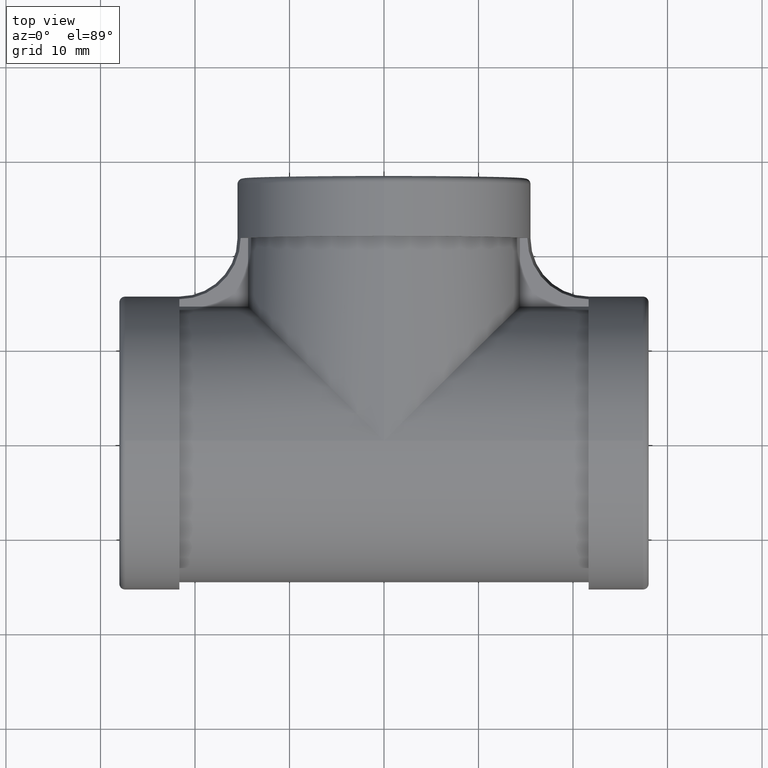
[diagram: clean part render]
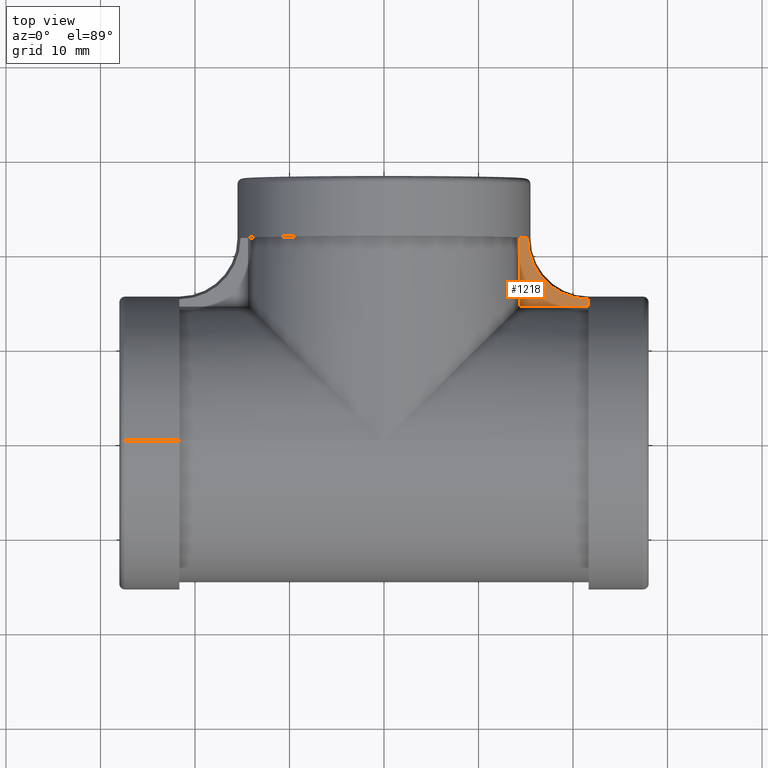
[diagram: same view with one face highlighted and labeled with its STEP entity id]
A machine part, top view. The second image highlights one B-rep face of the part: STEP entity #1218.
In plain terms, the highlighted planar face has unit normal (-0, 0, -1).
Its self-contained STEP definition (entity closure, byte-faithful):
#4 = CARTESIAN_POINT ( 'NONE',  ( 21.65000000000005542, 15.17133398880921291, 3.174999999999998934 ) ) ;
#37 = DIRECTION ( 'NONE',  ( 3.430265546700858697E-15, 1.000000000000000000, -1.429277311125357872E-16 ) ) ;
#47 = VECTOR ( 'NONE', #193, 1000.000000000000000 ) ;
#88 = DIRECTION ( 'NONE',  ( 0.000000000000000000, -1.000000000000000000, 0.000000000000000000 ) ) ;
#107 = FACE_OUTER_BOUND ( 'NONE', #1108, .T. ) ;
#117 = CARTESIAN_POINT ( 'NONE',  ( 21.65000000000005898, 21.64999999999998082, 3.175000000000002043 ) ) ;
#193 = DIRECTION ( 'NONE',  ( -1.000000000000000000, 3.491481338843133750E-15, -0.000000000000000000 ) ) ;
#218 = CIRCLE ( 'NONE', #803, 6.478666011190767904 ) ;
#222 = VERTEX_POINT ( 'NONE', #889 ) ;
#333 = DIRECTION ( 'NONE',  ( 1.000000000000000000, -6.921746885543992841E-15, -1.429277311125357872E-16 ) ) ;
#347 = CARTESIAN_POINT ( 'NONE',  ( 14.37862997646159258, 14.37862997646154284, 3.175000000000001599 ) ) ;
#348 = VERTEX_POINT ( 'NONE', #1247 ) ;
#369 = LINE ( 'NONE', #676, #47 ) ;
#431 = CARTESIAN_POINT ( 'NONE',  ( 15.17133398880928929, 21.65000000000000924, 3.174999999999999378 ) ) ;
#487 = ORIENTED_EDGE ( 'NONE', *, *, #757, .F. ) ;
#504 = CARTESIAN_POINT ( 'NONE',  ( 14.37862997646159258, 0.000000000000000000, 3.175000000000001599 ) ) ;
#513 = DIRECTION ( 'NONE',  ( 1.000000000000000000, 0.000000000000000000, 0.000000000000000000 ) ) ;
#526 = LINE ( 'NONE', #1030, #594 ) ;
#548 = EDGE_CURVE ( 'NONE', #222, #826, #1167, .T. ) ;
#560 = ORIENTED_EDGE ( 'NONE', *, *, #1306, .T. ) ;
#574 = AXIS2_PLACEMENT_3D ( 'NONE', #1226, #714, #1124 ) ;
#594 = VECTOR ( 'NONE', #37, 1000.000000000000000 ) ;
#603 = EDGE_CURVE ( 'NONE', #348, #1251, #369, .T. ) ;
#613 = VECTOR ( 'NONE', #333, 1000.000000000000000 ) ;
#676 = CARTESIAN_POINT ( 'NONE',  ( 5.020271824094613426E-14, 14.37862997646159258, 3.175000000000001599 ) ) ;
#694 = ORIENTED_EDGE ( 'NONE', *, *, #603, .F. ) ;
#714 = DIRECTION ( 'NONE',  ( -0.000000000000000000, 0.000000000000000000, -1.000000000000000000 ) ) ;
#730 = ORIENTED_EDGE ( 'NONE', *, *, #548, .F. ) ;
#757 = EDGE_CURVE ( 'NONE', #826, #814, #218, .T. ) ;
#764 = VECTOR ( 'NONE', #88, 1000.000000000000000 ) ;
#793 = LINE ( 'NONE', #504, #764 ) ;
#803 = AXIS2_PLACEMENT_3D ( 'NONE', #117, #1002, #513 ) ;
#814 = VERTEX_POINT ( 'NONE', #4 ) ;
#826 = VERTEX_POINT ( 'NONE', #1126 ) ;
#889 = CARTESIAN_POINT ( 'NONE',  ( 14.37862997646159435, 21.65000000000000213, 3.174999999999998934 ) ) ;
#910 = PLANE ( 'NONE',  #574 ) ;
#1002 = DIRECTION ( 'NONE',  ( 0.000000000000000000, 0.000000000000000000, 1.000000000000000000 ) ) ;
#1007 = ORIENTED_EDGE ( 'NONE', *, *, #1207, .T. ) ;
#1030 = CARTESIAN_POINT ( 'NONE',  ( 21.65000000000005542, 15.17133398880921291, 3.174999999999999378 ) ) ;
#1108 = EDGE_LOOP ( 'NONE', ( #694, #560, #487, #730, #1007 ) ) ;
#1124 = DIRECTION ( 'NONE',  ( -1.000000000000000000, 0.000000000000000000, 0.000000000000000000 ) ) ;
#1126 = CARTESIAN_POINT ( 'NONE',  ( 15.17133398880928929, 21.65000000000000213, 3.174999999999999378 ) ) ;
#1167 = LINE ( 'NONE', #431, #613 ) ;
#1207 = EDGE_CURVE ( 'NONE', #222, #1251, #793, .T. ) ;
#1218 = ADVANCED_FACE ( 'NONE', ( #107 ), #910, .F. ) ;
#1226 = CARTESIAN_POINT ( 'NONE',  ( 15.17133398880928929, 21.65000000000000924, 3.175000000000001599 ) ) ;
#1247 = CARTESIAN_POINT ( 'NONE',  ( 21.65000000000005187, 14.37862997646151797, 3.174999999999998490 ) ) ;
#1251 = VERTEX_POINT ( 'NONE', #347 ) ;
#1306 = EDGE_CURVE ( 'NONE', #348, #814, #526, .T. ) ;